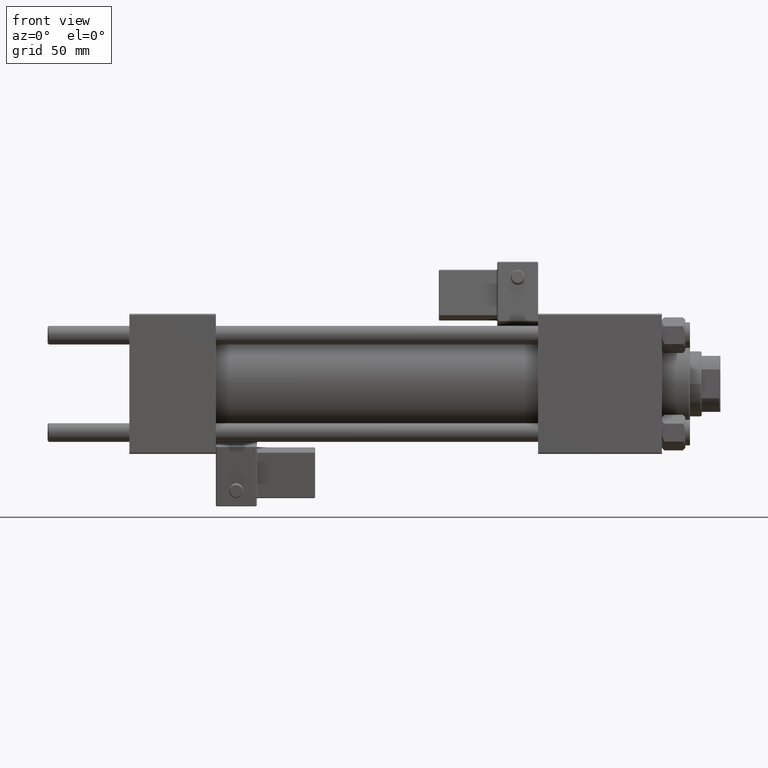
[diagram: clean part render]
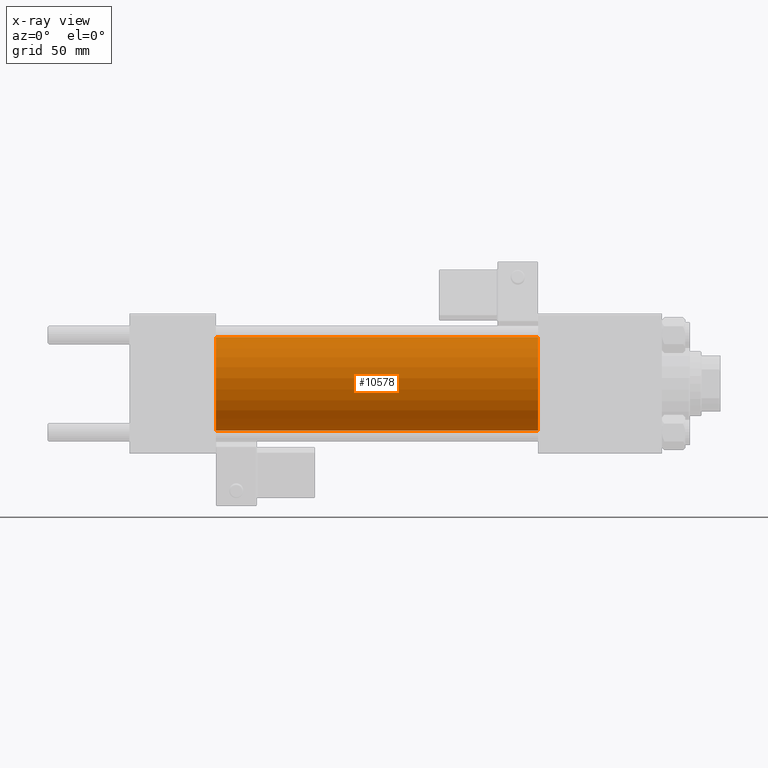
[diagram: x-ray — body ghosted, one internal face saturated and labeled with its STEP entity id]
A machine part, front view, then the same camera in x-ray: the body is ghosted and one INTERNAL B-rep face — a face not visible from any outside direction — is saturated and labeled: STEP entity #10578.
In plain terms, the highlighted cylindrical surface (partial cylindrical patch) has radius 20 mm, axis along (-1, -0, -0).
Its self-contained STEP definition (entity closure, byte-faithful):
#1307 = AXIS2_PLACEMENT_3D ( 'NONE', #22781, #10650, #47256 ) ;
#3046 = EDGE_LOOP ( 'NONE', ( #33370, #15424, #28189, #34426 ) ) ;
#4351 = CARTESIAN_POINT ( 'NONE',  ( 175.0000000000000284, 2.449293598294706513E-15, -20.00000000000000000 ) ) ;
#5094 = CARTESIAN_POINT ( 'NONE',  ( 175.0000000000000284, 0.000000000000000000, 0.000000000000000000 ) ) ;
#5726 = CARTESIAN_POINT ( 'NONE',  ( 37.00000000000000000, 2.449293598294706513E-15, -20.00000000000000000 ) ) ;
#6090 = DIRECTION ( 'NONE',  ( -1.000000000000000000, -0.000000000000000000, -0.000000000000000000 ) ) ;
#6821 = EDGE_CURVE ( 'NONE', #42967, #32413, #46846, .T. ) ;
#8430 = DIRECTION ( 'NONE',  ( -1.000000000000000000, -0.000000000000000000, -0.000000000000000000 ) ) ;
#10578 = ADVANCED_FACE ( 'NONE', ( #45867 ), #49818, .F. ) ;
#10650 = DIRECTION ( 'NONE',  ( 1.000000000000000000, 0.000000000000000000, 0.000000000000000000 ) ) ;
#13771 = DIRECTION ( 'NONE',  ( 0.000000000000000000, 0.000000000000000000, -1.000000000000000000 ) ) ;
#15424 = ORIENTED_EDGE ( 'NONE', *, *, #38828, .T. ) ;
#16791 = CARTESIAN_POINT ( 'NONE',  ( 175.0000000000000284, 2.449293598294706513E-15, -20.00000000000000000 ) ) ;
#17981 = CARTESIAN_POINT ( 'NONE',  ( 175.0000000000000284, 0.000000000000000000, 20.00000000000000000 ) ) ;
#18016 = VERTEX_POINT ( 'NONE', #17981 ) ;
#20667 = EDGE_CURVE ( 'NONE', #18016, #42967, #28460, .T. ) ;
#20977 = VERTEX_POINT ( 'NONE', #16791 ) ;
#22781 = CARTESIAN_POINT ( 'NONE',  ( 37.00000000000000000, 0.000000000000000000, 0.000000000000000000 ) ) ;
#26606 = VECTOR ( 'NONE', #32792, 1000.000000000000000 ) ;
#27181 = EDGE_CURVE ( 'NONE', #18016, #20977, #28810, .T. ) ;
#27968 = AXIS2_PLACEMENT_3D ( 'NONE', #5094, #33284, #13771 ) ;
#28189 = ORIENTED_EDGE ( 'NONE', *, *, #6821, .F. ) ;
#28460 = LINE ( 'NONE', #44516, #37092 ) ;
#28810 = CIRCLE ( 'NONE', #27968, 20.00000000000000000 ) ;
#32413 = VERTEX_POINT ( 'NONE', #5726 ) ;
#32792 = DIRECTION ( 'NONE',  ( -1.000000000000000000, -0.000000000000000000, -0.000000000000000000 ) ) ;
#33284 = DIRECTION ( 'NONE',  ( 1.000000000000000000, 0.000000000000000000, 0.000000000000000000 ) ) ;
#33370 = ORIENTED_EDGE ( 'NONE', *, *, #27181, .T. ) ;
#34028 = DIRECTION ( 'NONE',  ( 0.000000000000000000, 0.000000000000000000, 1.000000000000000000 ) ) ;
#34426 = ORIENTED_EDGE ( 'NONE', *, *, #20667, .F. ) ;
#37092 = VECTOR ( 'NONE', #8430, 1000.000000000000000 ) ;
#37560 = CARTESIAN_POINT ( 'NONE',  ( 37.00000000000000000, 0.000000000000000000, 20.00000000000000000 ) ) ;
#38828 = EDGE_CURVE ( 'NONE', #20977, #32413, #44641, .T. ) ;
#42185 = CARTESIAN_POINT ( 'NONE',  ( 175.0000000000000284, 0.000000000000000000, 0.000000000000000000 ) ) ;
#42661 = AXIS2_PLACEMENT_3D ( 'NONE', #42185, #6090, #34028 ) ;
#42967 = VERTEX_POINT ( 'NONE', #37560 ) ;
#44516 = CARTESIAN_POINT ( 'NONE',  ( 175.0000000000000284, 0.000000000000000000, 20.00000000000000000 ) ) ;
#44641 = LINE ( 'NONE', #4351, #26606 ) ;
#45867 = FACE_OUTER_BOUND ( 'NONE', #3046, .T. ) ;
#46846 = CIRCLE ( 'NONE', #1307, 20.00000000000000000 ) ;
#47256 = DIRECTION ( 'NONE',  ( 0.000000000000000000, 0.000000000000000000, -1.000000000000000000 ) ) ;
#49818 = CYLINDRICAL_SURFACE ( 'NONE', #42661, 20.00000000000000000 ) ;